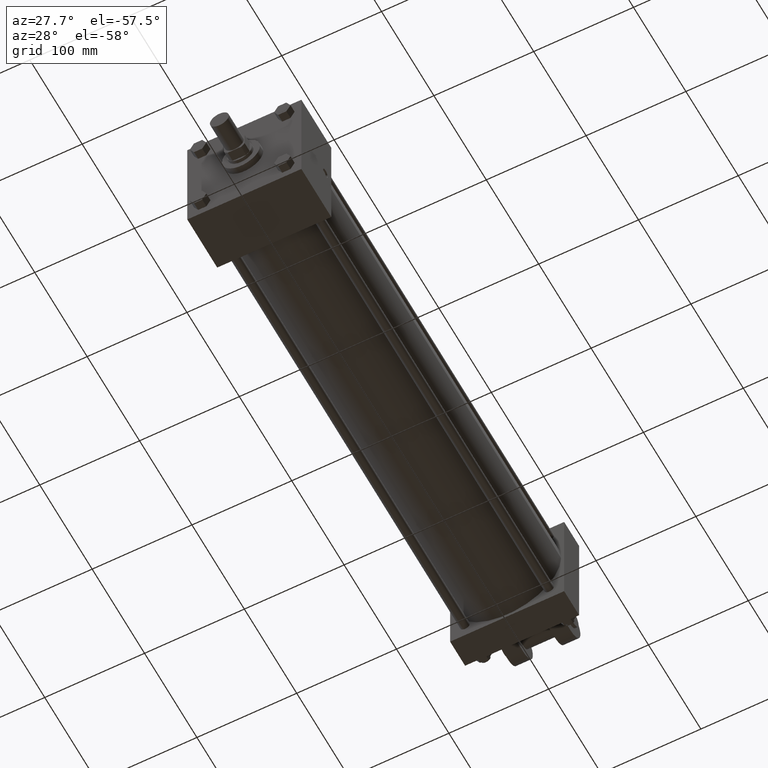
[diagram: clean part render]
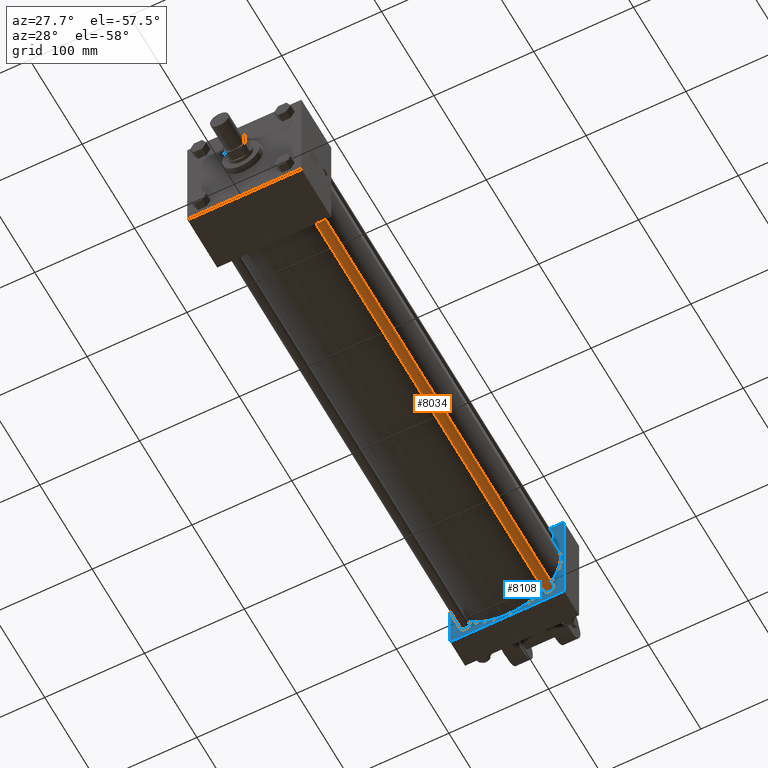
[diagram: same view with the hole feature highlighted: cylindrical wall and planar end face, labeled with their STEP entity ids]
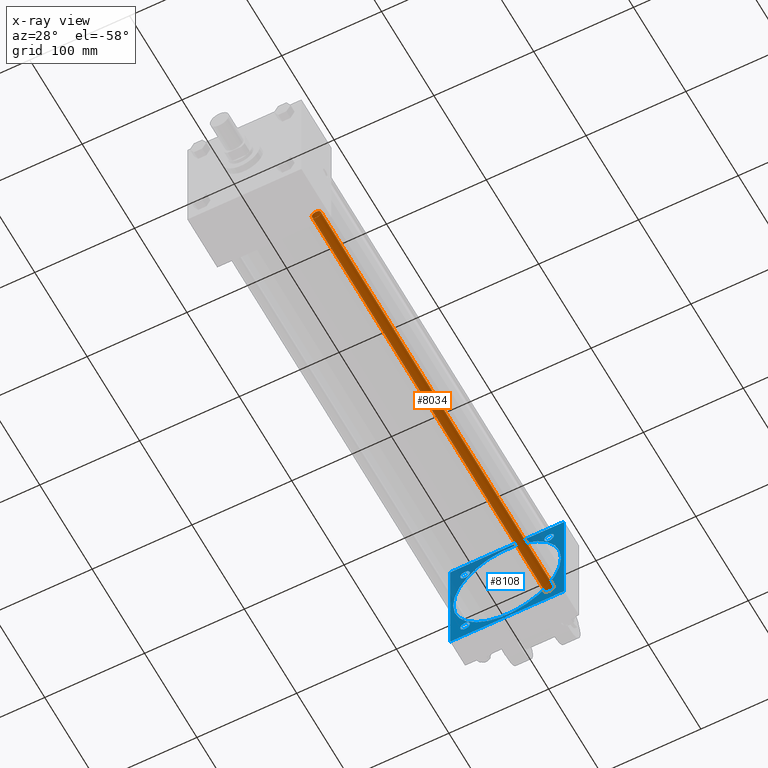
[diagram: x-ray of the same camera — body ghosted, the hole faces saturated]
A machine part, auxiliary view. The highlighted faces form one hole feature of diameter 9.525 mm: the cylindrical wall (entity #8034, orange) and its adjacent planar end face (entity #8108, blue) — they share a circular edge in the B-rep.
The next image is the same camera in x-ray (body ghosted, the hole faces saturated) — the bore reads through the body.
Wall:
#527=EDGE_CURVE('',#533,#533,#528,.T.);
#528=CIRCLE('',#529,4.762500000E+000);
#529=AXIS2_PLACEMENT_3D('',#530,#531,#532);
#530=CARTESIAN_POINT('',(4.216400000E+001,7.620000000E+001,-4.216400000E+001));
#531=DIRECTION('',(0.0E+000,1.0E+000,0.0E+000));
#532=DIRECTION('',(1.0E+000,0.0E+000,0.0E+000));
#533=VERTEX_POINT('',#534);
#534=CARTESIAN_POINT('',(4.692650000E+001,7.620000000E+001,-4.216400000E+001));
#2386=FACE_OUTER_BOUND('',#2388,.T.);
#2387=FACE_BOUND('',#2389,.T.);
#2388=EDGE_LOOP('',(#2390));
#2389=EDGE_LOOP('',(#2391));
#2390=ORIENTED_EDGE('',*,*,#2440,.F.);
#2391=ORIENTED_EDGE('',*,*,#527,.T.);
#2392=CYLINDRICAL_SURFACE('',#2393,4.762500000E+000);
#2393=AXIS2_PLACEMENT_3D('',#2394,#2395,#2396);
#2394=CARTESIAN_POINT('',(4.216400000E+001,5.207000000E+002,-4.216400000E+001));
#2395=DIRECTION('',(0.0E+000,-1.0E+000,0.0E+000));
#2396=DIRECTION('',(0.0E+000,0.0E+000,-1.0E+000));
#2440=EDGE_CURVE('',#2446,#2446,#2441,.T.);
#2441=CIRCLE('',#2442,4.762500000E+000);
#2442=AXIS2_PLACEMENT_3D('',#2443,#2444,#2445);
#2443=CARTESIAN_POINT('',(4.216400000E+001,5.207000000E+002,-4.216400000E+001));
#2444=DIRECTION('',(0.0E+000,1.0E+000,0.0E+000));
#2445=DIRECTION('',(1.0E+000,0.0E+000,0.0E+000));
#2446=VERTEX_POINT('',#2447);
#2447=CARTESIAN_POINT('',(4.692650000E+001,5.207000000E+002,-4.216400000E+001));
#8034=ADVANCED_FACE('',(#2386,#2387),#2392,.T.);
End face:
#2334=EDGE_CURVE('',#2340,#2340,#2335,.T.);
#2335=CIRCLE('',#2336,5.397500000E+001);
#2336=AXIS2_PLACEMENT_3D('',#2337,#2338,#2339);
#2337=CARTESIAN_POINT('',(0.000000000E+000,5.207000000E+002,0.000000000E+000));
#2338=DIRECTION('',(0.0E+000,1.0E+000,0.0E+000));
#2339=DIRECTION('',(1.0E+000,0.0E+000,0.0E+000));
#2340=VERTEX_POINT('',#2341);
#2341=CARTESIAN_POINT('',(5.397500000E+001,5.207000000E+002,0.000000000E+000));
#2416=EDGE_CURVE('',#2422,#2422,#2417,.T.);
#2417=CIRCLE('',#2418,4.762500000E+000);
#2418=AXIS2_PLACEMENT_3D('',#2419,#2420,#2421);
#2419=CARTESIAN_POINT('',(4.216400000E+001,5.207000000E+002,4.216400000E+001));
#2420=DIRECTION('',(0.0E+000,-1.0E+000,0.0E+000));
#2421=DIRECTION('',(-1.0E+000,0.0E+000,0.0E+000));
#2422=VERTEX_POINT('',#2423);
#2423=CARTESIAN_POINT('',(3.740150000E+001,5.207000000E+002,4.216400000E+001));
#2424=EDGE_CURVE('',#2430,#2430,#2425,.T.);
#2425=CIRCLE('',#2426,4.762500000E+000);
#2426=AXIS2_PLACEMENT_3D('',#2427,#2428,#2429);
#2427=CARTESIAN_POINT('',(-4.216400000E+001,5.207000000E+002,-4.216400000E+001));
#2428=DIRECTION('',(0.0E+000,1.0E+000,0.0E+000));
#2429=DIRECTION('',(1.0E+000,0.0E+000,0.0E+000));
#2430=VERTEX_POINT('',#2431);
#2431=CARTESIAN_POINT('',(-3.740150000E+001,5.207000000E+002,-4.216400000E+001));
#2440=EDGE_CURVE('',#2446,#2446,#2441,.T.);
#2441=CIRCLE('',#2442,4.762500000E+000);
#2442=AXIS2_PLACEMENT_3D('',#2443,#2444,#2445);
#2443=CARTESIAN_POINT('',(4.216400000E+001,5.207000000E+002,-4.216400000E+001));
#2444=DIRECTION('',(0.0E+000,1.0E+000,0.0E+000));
#2445=DIRECTION('',(1.0E+000,0.0E+000,0.0E+000));
#2446=VERTEX_POINT('',#2447);
#2447=CARTESIAN_POINT('',(4.692650000E+001,5.207000000E+002,-4.216400000E+001));
#2456=EDGE_CURVE('',#2462,#2462,#2457,.T.);
#2457=CIRCLE('',#2458,4.762500000E+000);
#2458=AXIS2_PLACEMENT_3D('',#2459,#2460,#2461);
#2459=CARTESIAN_POINT('',(-4.216400000E+001,5.207000000E+002,4.216400000E+001));
#2460=DIRECTION('',(0.0E+000,1.0E+000,0.0E+000));
#2461=DIRECTION('',(1.0E+000,0.0E+000,0.0E+000));
#2462=VERTEX_POINT('',#2463);
#2463=CARTESIAN_POINT('',(-3.740150000E+001,5.207000000E+002,4.216400000E+001));
#5476=FACE_OUTER_BOUND('',#5482,.T.);
#5477=FACE_BOUND('',#5483,.T.);
#5478=FACE_BOUND('',#5484,.T.);
#5479=FACE_BOUND('',#5485,.T.);
#5480=FACE_BOUND('',#5486,.T.);
#5481=FACE_BOUND('',#5487,.T.);
#5482=EDGE_LOOP('',(#5488));
#5483=EDGE_LOOP('',(#5497));
#5484=EDGE_LOOP('',(#5506));
#5485=EDGE_LOOP('',(#5515,#5516,#5517,#5518));
#5486=EDGE_LOOP('',(#5547));
#5487=EDGE_LOOP('',(#5556));
#5488=ORIENTED_EDGE('',*,*,#2416,.T.);
#5497=ORIENTED_EDGE('',*,*,#2440,.T.);
#5506=ORIENTED_EDGE('',*,*,#2424,.T.);
#5515=ORIENTED_EDGE('',*,*,#5519,.T.);
#5516=ORIENTED_EDGE('',*,*,#5528,.T.);
#5517=ORIENTED_EDGE('',*,*,#5535,.T.);
#5518=ORIENTED_EDGE('',*,*,#5542,.T.);
#5519=EDGE_CURVE('',#5524,#5525,#5520,.T.);
#5520=LINE('',#5521,#5522);
#5521=CARTESIAN_POINT('',(-5.715000000E+001,5.207000000E+002,-5.715000000E+001));
#5522=VECTOR('',#5523,1.0E+000);
#5523=DIRECTION('',(1.0E+000,0.0E+000,0.0E+000));
#5524=VERTEX_POINT('',#5526);
#5525=VERTEX_POINT('',#5527);
#5526=CARTESIAN_POINT('',(-5.715000000E+001,5.207000000E+002,-5.715000000E+001));
#5527=CARTESIAN_POINT('',(5.715000000E+001,5.207000000E+002,-5.715000000E+001));
#5528=EDGE_CURVE('',#5525,#5533,#5529,.T.);
#5529=LINE('',#5530,#5531);
#5530=CARTESIAN_POINT('',(5.715000000E+001,5.207000000E+002,-5.715000000E+001));
#5531=VECTOR('',#5532,1.0E+000);
#5532=DIRECTION('',(0.0E+000,0.0E+000,1.0E+000));
#5533=VERTEX_POINT('',#5534);
#5534=CARTESIAN_POINT('',(5.715000000E+001,5.207000000E+002,5.715000000E+001));
#5535=EDGE_CURVE('',#5533,#5540,#5536,.T.);
#5536=LINE('',#5537,#5538);
#5537=CARTESIAN_POINT('',(5.715000000E+001,5.207000000E+002,5.715000000E+001));
#5538=VECTOR('',#5539,1.0E+000);
#5539=DIRECTION('',(-1.0E+000,0.0E+000,0.0E+000));
#5540=VERTEX_POINT('',#5541);
#5541=CARTESIAN_POINT('',(-5.715000000E+001,5.207000000E+002,5.715000000E+001));
#5542=EDGE_CURVE('',#5540,#5524,#5543,.T.);
#5543=LINE('',#5544,#5545);
#5544=CARTESIAN_POINT('',(-5.715000000E+001,5.207000000E+002,5.715000000E+001));
#5545=VECTOR('',#5546,1.0E+000);
#5546=DIRECTION('',(0.0E+000,0.0E+000,-1.0E+000));
#5547=ORIENTED_EDGE('',*,*,#2456,.T.);
#5556=ORIENTED_EDGE('',*,*,#2334,.T.);
#5565=PLANE('',#5566);
#5566=AXIS2_PLACEMENT_3D('',#5567,#5568,#5569);
#5567=CARTESIAN_POINT('',(5.715000000E+001,5.207000000E+002,-5.715000000E+001));
#5568=DIRECTION('',(0.0E+000,-1.0E+000,0.0E+000));
#5569=DIRECTION('',(0.0E+000,0.0E+000,-1.0E+000));
#8108=ADVANCED_FACE('',(#5476,#5477,#5478,#5479,#5480,#5481),#5565,.T.);